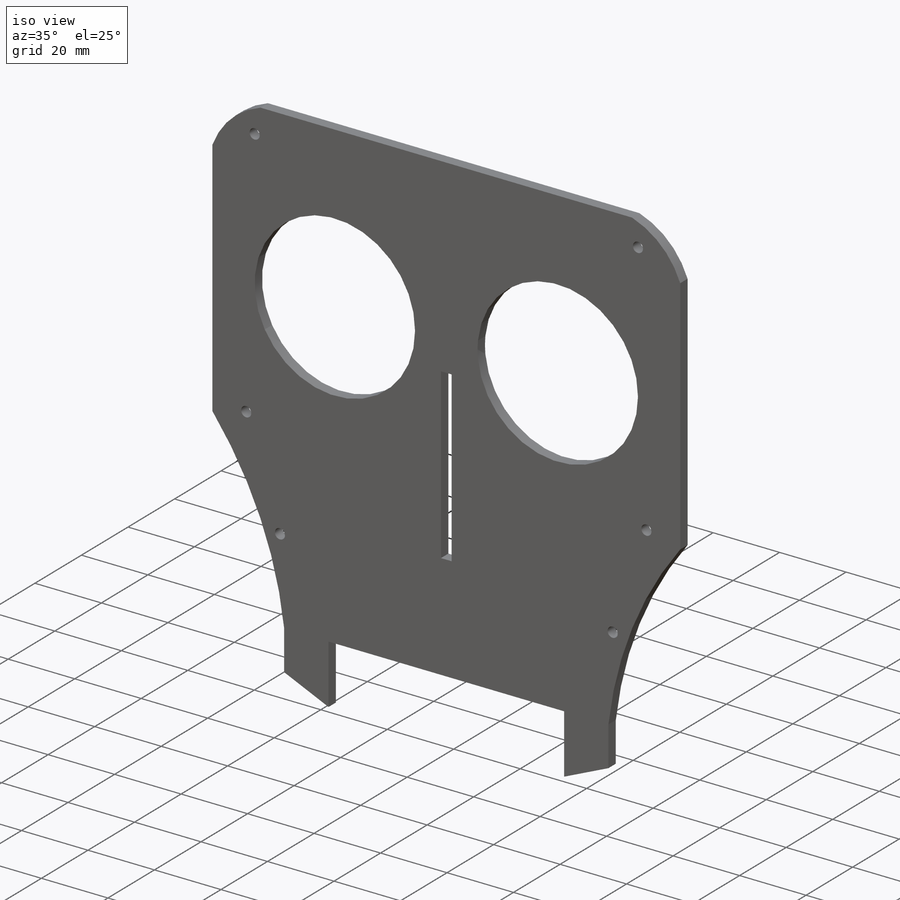
[diagram: iso view]
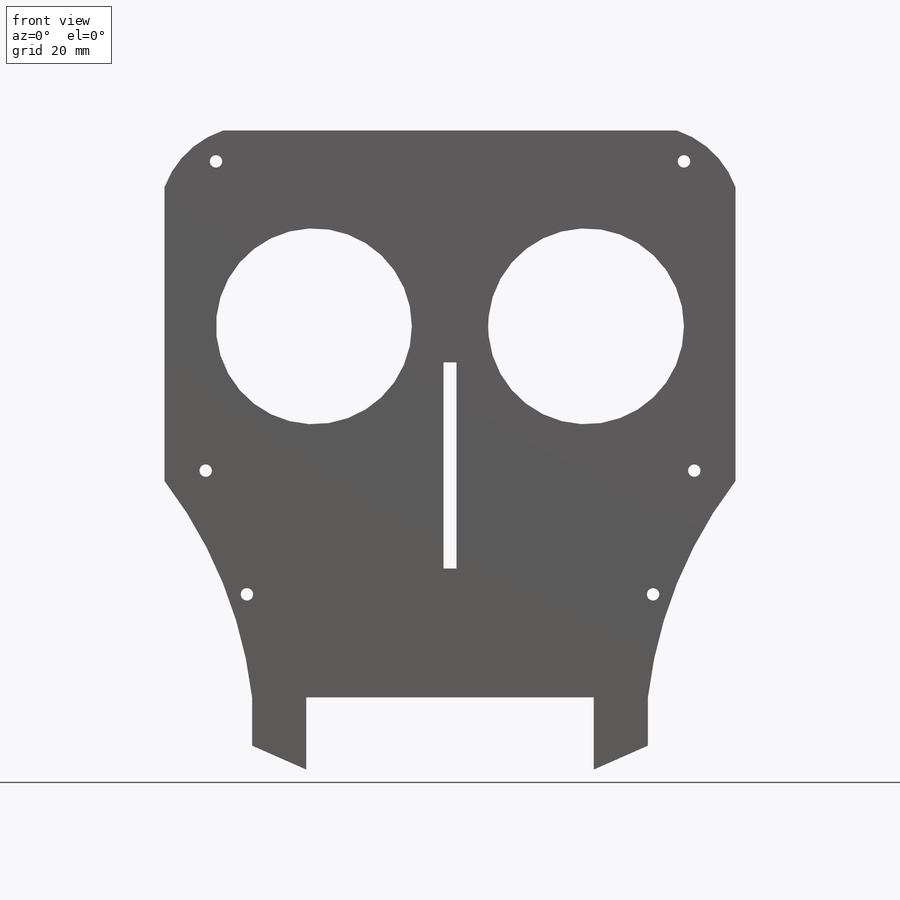
[diagram: front view]
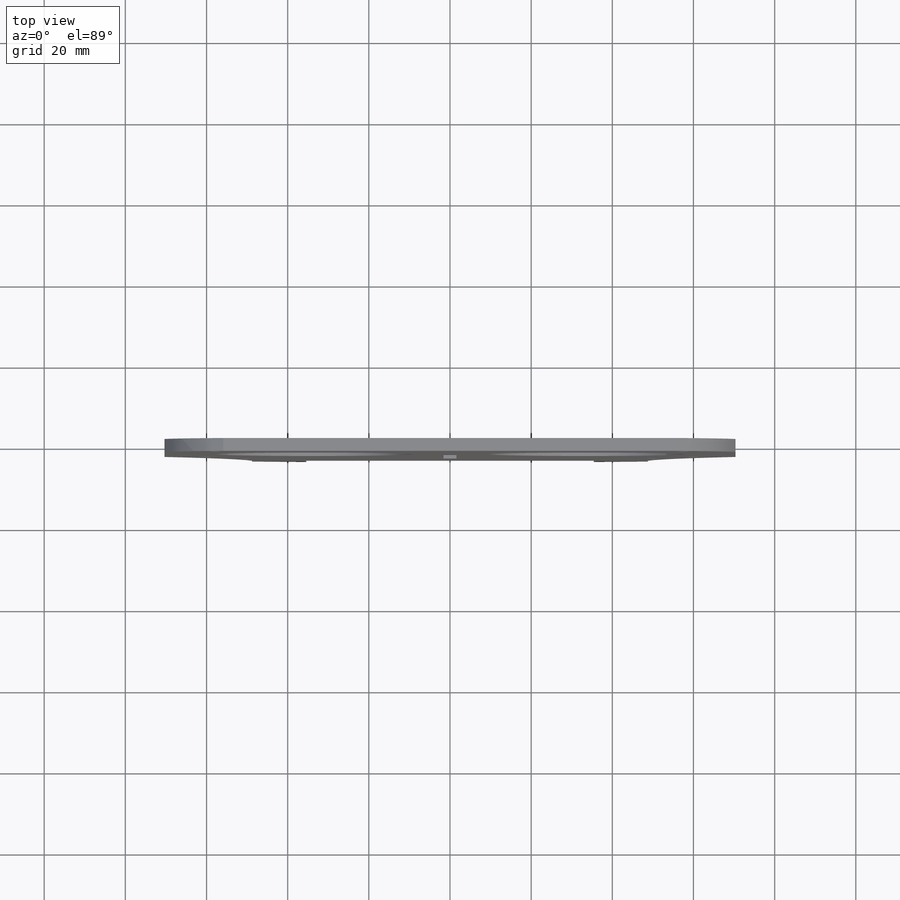
[diagram: top view]
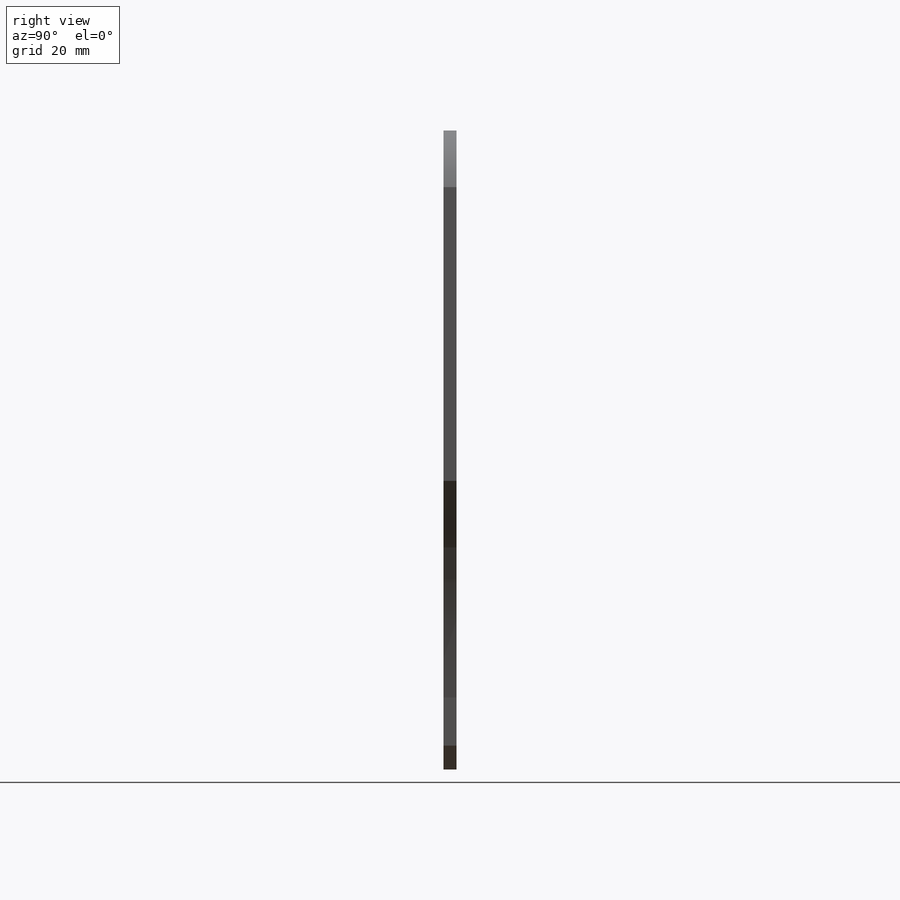
[diagram: right view]
SOLIDWORKS PART (.sldprt)
format: sldprt  version: not decoded by parser v0  size: 417,280 bytes
history: native  units: mm
features: sketch x6, cut_extrude x4, mirror x4, extrude x2, material x1 (+16 scaffold rows collapsed)
feature tree (33):
  scaffold x16  (default folders/planes/origin — collapsed)
  material  "Material <not specified>"
  sketch  "Sketch1"  dims[c1.D1=88.9mm c1.D2=68.58mm c1.D3=12.7mm c1.D4=44.45mm c2.D1=70.358mm c2.D5=140.716mm c2.D6=~42.95616mm c2.D7=~85.912319mm c2.D2=139.7mm]
  extrude  "main body"  Depth=3.175mm
  sketch  "Sketch2"  dims[c1.D3=~3.616938mm c1.D8=2.032mm c1.D9=2.032mm c1.D10=48.768mm c1.D7=1.016mm c2.D8=1.016mm c2.D14=1.016mm c2.D15=1.016mm c2.D24=1.016mm c2.D25=1.016mm c2.D10=24.384mm c2.D4=3.048mm c2.D5=3.048mm c2.D6=3.048mm c3.D8=3.048mm c3.D9=3.048mm c3.D11=3.048mm c4.D9=22.352mm c4.D6=51.308mm c4.D7=3.048mm c4.D2=50.8mm c4.D3=3.048mm c5.D6=3.048mm c5.D2=48.26mm c5.D7=3.048mm c5.D11=25.4mm c5.D1=25.4mm c6.D2=25.4mm c6.D3=15.24mm c6.D4=20.32mm c6.D5=12.7mm c6.D6=22.86mm c6.D7=27.94mm c7.D5=27.94mm c7.D3=25.4mm c7.D4=17.78mm c8.D5=12.7mm c8.D6=22.86mm c8.D7=27.94mm c8.D9=34.29mm c8.D11=18.288mm c8.D12=22.86mm c8.D13=12.7mm c8.D2=25.4mm c8.D16=27.94mm c8.D17=27.94mm c8.D18=27.94mm c8.D19=15.24mm c8.D20=22.86mm c8.D21=12.7mm c8.D22=22.86mm c8.D23=27.94mm c8.D26=48.26mm c9.D9=68.834mm c9.D20=31.75mm c10.D9=2.54mm c10.D22=12.573mm c10.D27=1.27mm c10.D28=12.573mm c10.D29=1.27mm c11.D28=12.573mm c11.D29=1.27mm c12.D28=1.27mm c12.D10=35.56mm c12.D16=0.762mm c12.D22=34.29mm c12.D26=0.762mm c12.D27=31.75mm c13.D28=0.762mm c13.D29=0.762mm c13.D3=9.906mm c13.D4=9.906mm c13.D6=16.764mm c13.D7=16.764mm c13.D8=54.7624mm c13.D9=27.686mm c13.D11=33.02mm c14.D9=48.26mm c14.D7=25.654mm c15.D9=11.176mm c15.D10=139.7mm c16.D10=~0.053166deg c17.D10=32.258mm c17.D2=~28.48871mm c17.D3=27.3812mm c17.D6=33.6804mm c18.D3=33.528mm c18.D6=48.26mm c18.D7=27.3812mm]
  cut_extrude  "cuts for eyes and motors"  [1 undecoded]
  sketch  "Sketch4"  dims[D1=3.2258mm D2=50.8mm D3=57.15mm D4=6.5278mm D5=3.2258mm D6=21.844mm]
  cut_extrude  "cut for nose"  [1 undecoded]
  mirror  "Mirror1"
  sketch  "Sketch11"  dims[c1.D5=~87.370745mm c1.D1=14.478mm c1.D2=53.34mm c1.D3=13.97mm c1.D4=14.478mm c2.D1=21.59mm]
  cut_extrude  "cut for rounded face features"  [1 undecoded]
  mirror  "mirror of rounded feature"
  sketch  "Sketch12"  dims[D1=3.048mm D2=3.048mm D3=3.048mm D4=10.16mm D5=12.7mm D6=114.3mm D7=20.32mm D8=7.62mm D9=83.82mm]
  cut_extrude  "holes for spacers"  [1 undecoded]
  mirror  "mirror of spacer hole"
  sketch  "Sketch14"  dims[D1=13.335mm D2=17.78mm]
  extrude  "Boss-Extrude1"  Depth=3.175mm
  mirror  "Mirror3"
decode coverage: 8 of 16 modeling features carry decoded parameters
note: ~ marks probable driven/reference dimensions
note: 4 parameter values undecoded
summary: no parameter record found for 4 features
note: suppression state not decoded; provenance and decode notes live in map.json
